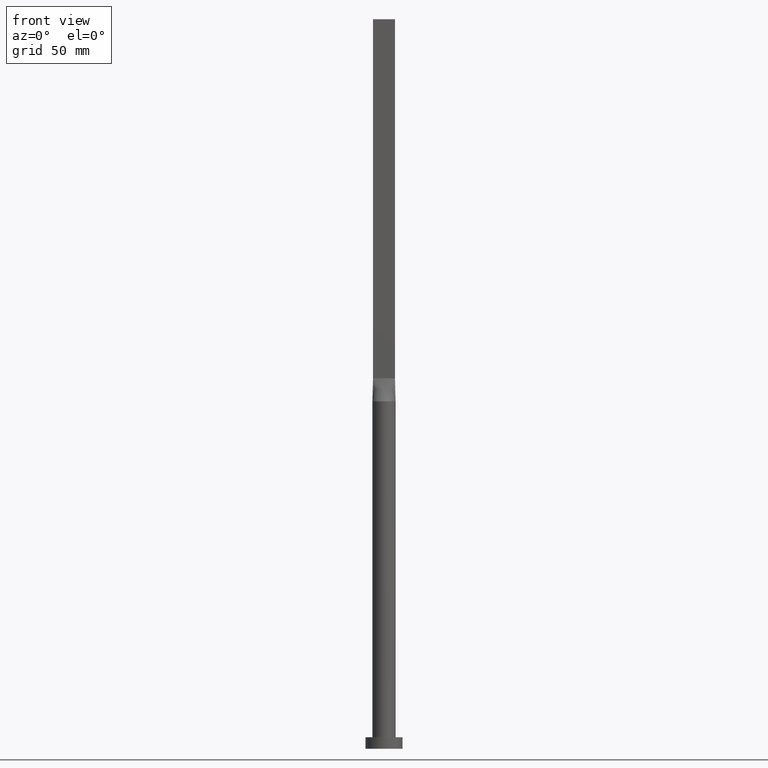
[diagram: clean part render]
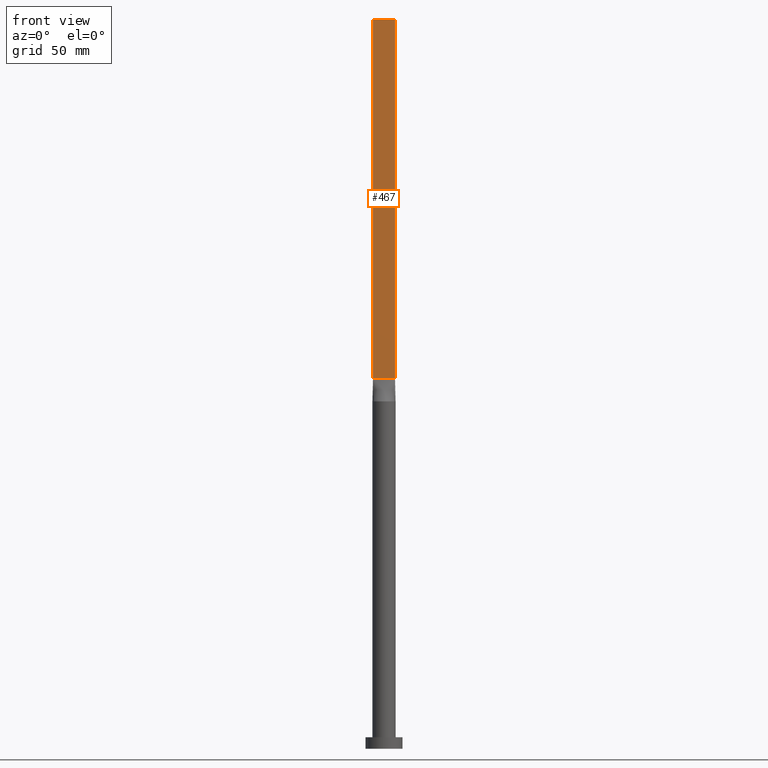
[diagram: same view with one face highlighted and labeled with its STEP entity id]
A machine part, front view. The second image highlights one B-rep face of the part: STEP entity #467.
In plain terms, the highlighted planar face has unit normal (0, 1, -0).
Its self-contained STEP definition (entity closure, byte-faithful):
#33 = ORIENTED_EDGE ( 'NONE', *, *, #584, .T. ) ;
#65 = DIRECTION ( 'NONE',  ( 1.000000000000000000, -6.847592668329501559E-17, 0.000000000000000000 ) ) ;
#74 = EDGE_CURVE ( 'NONE', #218, #126, #293, .T. ) ;
#81 = AXIS2_PLACEMENT_3D ( 'NONE', #478, #434, #431 ) ;
#114 = VECTOR ( 'NONE', #244, 1000.000000000000000 ) ;
#126 = VERTEX_POINT ( 'NONE', #575 ) ;
#157 = CARTESIAN_POINT ( 'NONE',  ( -4.750000000000000000, -0.7499999999999991118, 160.0000000000000000 ) ) ;
#189 = LINE ( 'NONE', #527, #114 ) ;
#190 = DIRECTION ( 'NONE',  ( 1.000000000000000000, -6.847592668329501559E-17, 0.000000000000000000 ) ) ;
#195 = PLANE ( 'NONE',  #81 ) ;
#210 = CARTESIAN_POINT ( 'NONE',  ( 4.750000000000000000, -0.7499999999999997780, 160.0000000000000000 ) ) ;
#218 = VERTEX_POINT ( 'NONE', #345 ) ;
#233 = EDGE_CURVE ( 'NONE', #282, #302, #497, .T. ) ;
#244 = DIRECTION ( 'NONE',  ( -0.000000000000000000, -0.000000000000000000, -1.000000000000000000 ) ) ;
#258 = EDGE_LOOP ( 'NONE', ( #362, #545, #539, #33 ) ) ;
#264 = VECTOR ( 'NONE', #409, 1000.000000000000000 ) ;
#282 = VERTEX_POINT ( 'NONE', #157 ) ;
#290 = FACE_OUTER_BOUND ( 'NONE', #258, .T. ) ;
#293 = LINE ( 'NONE', #332, #294 ) ;
#294 = VECTOR ( 'NONE', #190, 1000.000000000000000 ) ;
#300 = CARTESIAN_POINT ( 'NONE',  ( -4.750000000000000000, -0.7499999999999991118, 160.0000000000000000 ) ) ;
#302 = VERTEX_POINT ( 'NONE', #210 ) ;
#332 = CARTESIAN_POINT ( 'NONE',  ( -4.750000000000000000, -0.7499999999999991118, 315.0000000000000000 ) ) ;
#339 = VECTOR ( 'NONE', #65, 1000.000000000000000 ) ;
#345 = CARTESIAN_POINT ( 'NONE',  ( -4.750000000000000000, -0.7499999999999991118, 315.0000000000000000 ) ) ;
#362 = ORIENTED_EDGE ( 'NONE', *, *, #233, .T. ) ;
#409 = DIRECTION ( 'NONE',  ( -0.000000000000000000, -0.000000000000000000, -1.000000000000000000 ) ) ;
#425 = EDGE_CURVE ( 'NONE', #126, #302, #189, .T. ) ;
#431 = DIRECTION ( 'NONE',  ( -1.000000000000000000, 6.847592668329501559E-17, 0.000000000000000000 ) ) ;
#434 = DIRECTION ( 'NONE',  ( 6.847592668329501559E-17, 1.000000000000000000, -0.000000000000000000 ) ) ;
#467 = ADVANCED_FACE ( 'NONE', ( #290 ), #195, .F. ) ;
#478 = CARTESIAN_POINT ( 'NONE',  ( -4.750000000000000000, -0.7499999999999991118, 315.0000000000000000 ) ) ;
#497 = LINE ( 'NONE', #300, #339 ) ;
#507 = LINE ( 'NONE', #604, #264 ) ;
#527 = CARTESIAN_POINT ( 'NONE',  ( 4.750000000000000000, -0.7499999999999997780, 315.0000000000000000 ) ) ;
#539 = ORIENTED_EDGE ( 'NONE', *, *, #74, .F. ) ;
#545 = ORIENTED_EDGE ( 'NONE', *, *, #425, .F. ) ;
#575 = CARTESIAN_POINT ( 'NONE',  ( 4.750000000000000000, -0.7499999999999997780, 315.0000000000000000 ) ) ;
#584 = EDGE_CURVE ( 'NONE', #218, #282, #507, .T. ) ;
#604 = CARTESIAN_POINT ( 'NONE',  ( -4.750000000000000000, -0.7499999999999991118, 315.0000000000000000 ) ) ;